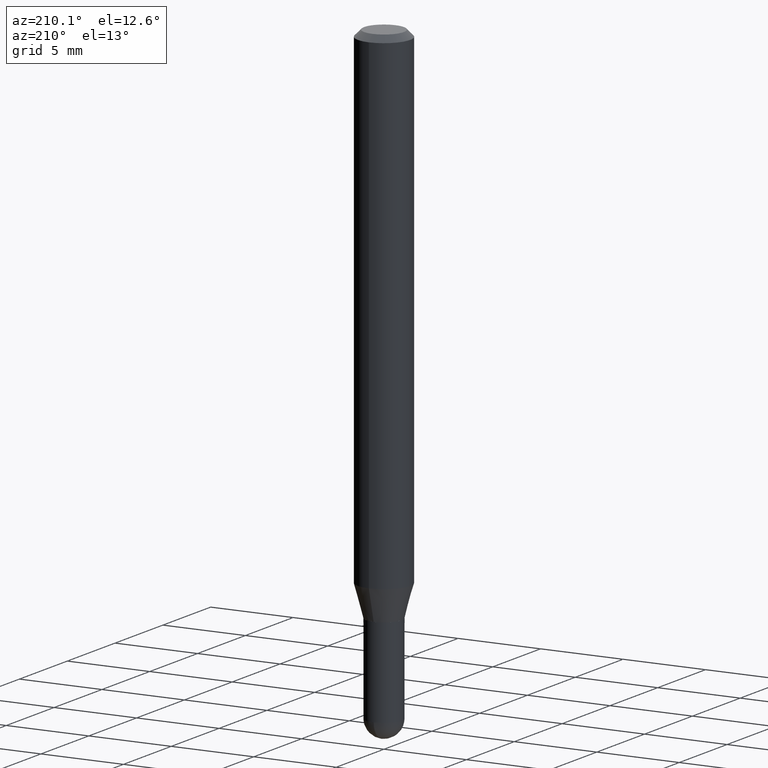
[diagram: clean part render]
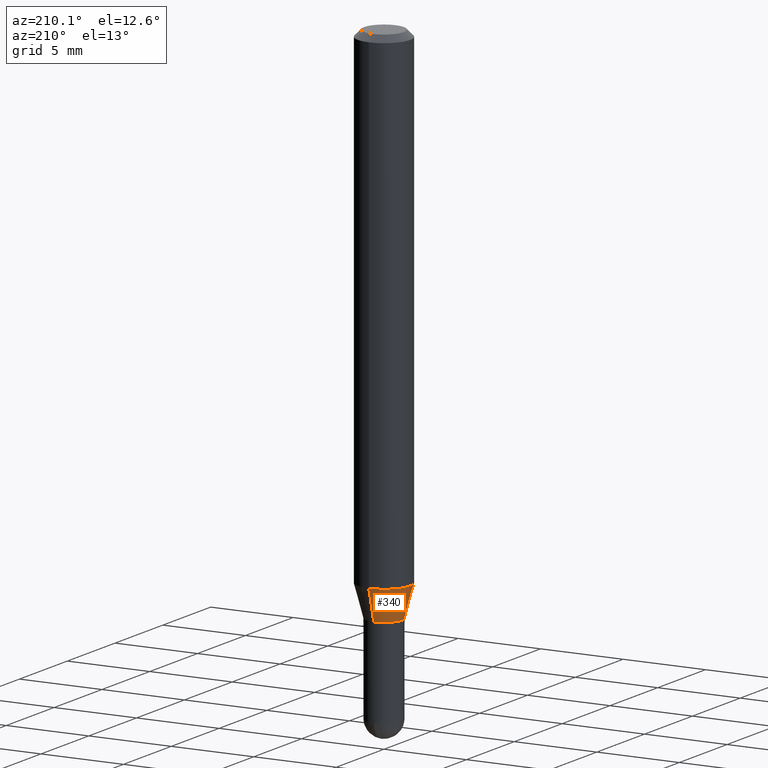
[diagram: same view with one face highlighted and labeled with its STEP entity id]
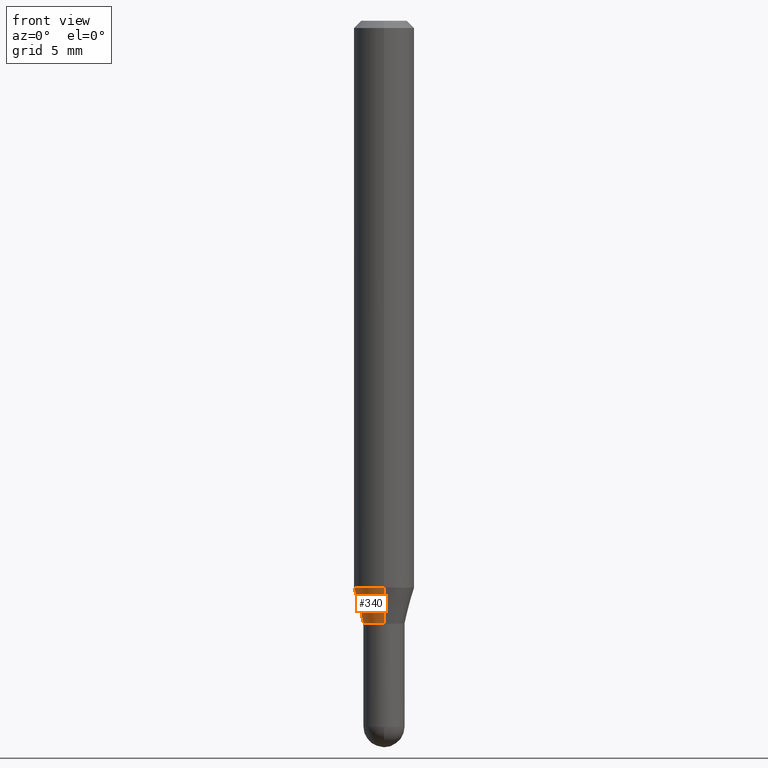
[diagram: same view with one face highlighted and labeled with its STEP entity id]
A machine part, auxiliary view. The second image highlights one B-rep face of the part: STEP entity #340.
A second angle (front view) of the same face is appended — the face is thin or edge-on in the first view.
In plain terms, the highlighted conical surface has half-angle 15 deg.
Its self-contained STEP definition (entity closure, byte-faithful):
#4 = EDGE_CURVE ( 'NONE', #124, #273, #386, .T. ) ;
#8 = AXIS2_PLACEMENT_3D ( 'NONE', #58, #95, #172 ) ;
#10 = CARTESIAN_POINT ( 'NONE',  ( 2.862182199487982773E-29, -4.086135022407415615E-15, -1.170358983848625023 ) ) ;
#29 = DIRECTION ( 'NONE',  ( -6.982962677686266711E-15, -1.000000000000000000, 6.427877632151220009E-15 ) ) ;
#58 = CARTESIAN_POINT ( 'NONE',  ( 3.044721224461019599E-29, -4.346733073444088389E-15, -1.245000000000000551 ) ) ;
#71 = CARTESIAN_POINT ( 'NONE',  ( -2.967759138016352935E-16, -0.04250000000000427047, -1.245000000000000329 ) ) ;
#94 = CIRCLE ( 'NONE', #489, 0.06250000000000000000 ) ;
#95 = DIRECTION ( 'NONE',  ( -2.445559216434552627E-29, 3.491351866220149979E-15, 1.000000000000000000 ) ) ;
#103 = AXIS2_PLACEMENT_3D ( 'NONE', #458, #294, #29 ) ;
#123 = DIRECTION ( 'NONE',  ( -1.807323732225379049E-15, -0.2588190451025252359, 0.9659258262890670910 ) ) ;
#124 = VERTEX_POINT ( 'NONE', #198 ) ;
#142 = CARTESIAN_POINT ( 'NONE',  ( -4.364351673553628267E-16, -0.06250000000000405231, -1.170358983848624801 ) ) ;
#153 = VERTEX_POINT ( 'NONE', #353 ) ;
#155 = EDGE_CURVE ( 'NONE', #153, #273, #94, .T. ) ;
#170 = ORIENTED_EDGE ( 'NONE', *, *, #452, .T. ) ;
#172 = DIRECTION ( 'NONE',  ( -6.982962677686266711E-15, -1.000000000000000000, 6.427877632151220009E-15 ) ) ;
#198 = CARTESIAN_POINT ( 'NONE',  ( -2.967759138016352935E-16, -0.04250000000000427047, -1.245000000000000329 ) ) ;
#200 = FACE_OUTER_BOUND ( 'NONE', #506, .T. ) ;
#205 = ORIENTED_EDGE ( 'NONE', *, *, #155, .F. ) ;
#223 = CIRCLE ( 'NONE', #8, 0.04249999999999991979 ) ;
#234 = LINE ( 'NONE', #404, #388 ) ;
#237 = CONICAL_SURFACE ( 'NONE', #103, 0.04249999999999991979, 0.2617993877991575125 ) ;
#250 = VERTEX_POINT ( 'NONE', #411 ) ;
#261 = VECTOR ( 'NONE', #123, 39.37007874015748854 ) ;
#273 = VERTEX_POINT ( 'NONE', #142 ) ;
#294 = DIRECTION ( 'NONE',  ( -2.445559216434552627E-29, 3.491351866220149979E-15, 1.000000000000000000 ) ) ;
#340 = ADVANCED_FACE ( 'NONE', ( #200 ), #237, .T. ) ;
#353 = CARTESIAN_POINT ( 'NONE',  ( 4.440892098500914096E-16, 0.06249999999999594075, -1.170358983848625467 ) ) ;
#354 = ORIENTED_EDGE ( 'NONE', *, *, #4, .T. ) ;
#371 = DIRECTION ( 'NONE',  ( 1.839019923739649619E-15, 0.2588190451025318972, 0.9659258262890650926 ) ) ;
#386 = LINE ( 'NONE', #71, #261 ) ;
#388 = VECTOR ( 'NONE', #371, 39.37007874015748854 ) ;
#393 = EDGE_CURVE ( 'NONE', #250, #153, #234, .T. ) ;
#404 = CARTESIAN_POINT ( 'NONE',  ( 3.019806626980724295E-16, 0.04249999999999557604, -1.245000000000000773 ) ) ;
#411 = CARTESIAN_POINT ( 'NONE',  ( 3.730349362740818209E-16, 0.04249999999999557604, -1.245000000000000773 ) ) ;
#435 = DIRECTION ( 'NONE',  ( -6.982962677686265922E-15, -1.000000000000000000, 4.370956789862821150E-15 ) ) ;
#452 = EDGE_CURVE ( 'NONE', #250, #124, #223, .T. ) ;
#458 = CARTESIAN_POINT ( 'NONE',  ( 3.044721224461019599E-29, -4.346733073444088389E-15, -1.245000000000000551 ) ) ;
#468 = DIRECTION ( 'NONE',  ( -2.445559216434552627E-29, 3.491351866220149979E-15, 1.000000000000000000 ) ) ;
#488 = ORIENTED_EDGE ( 'NONE', *, *, #393, .F. ) ;
#489 = AXIS2_PLACEMENT_3D ( 'NONE', #10, #468, #435 ) ;
#506 = EDGE_LOOP ( 'NONE', ( #488, #170, #354, #205 ) ) ;